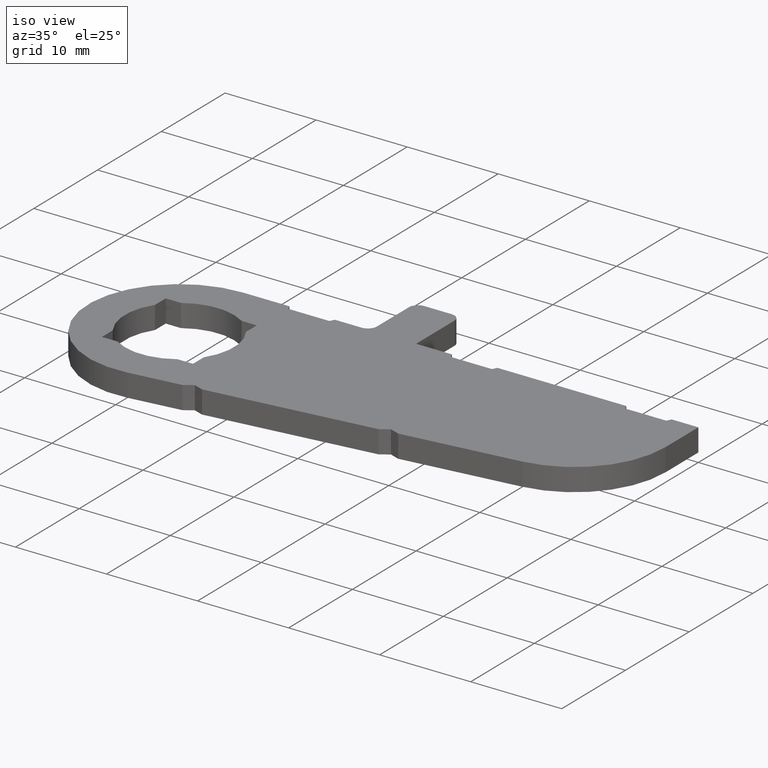
[diagram: clean part render]
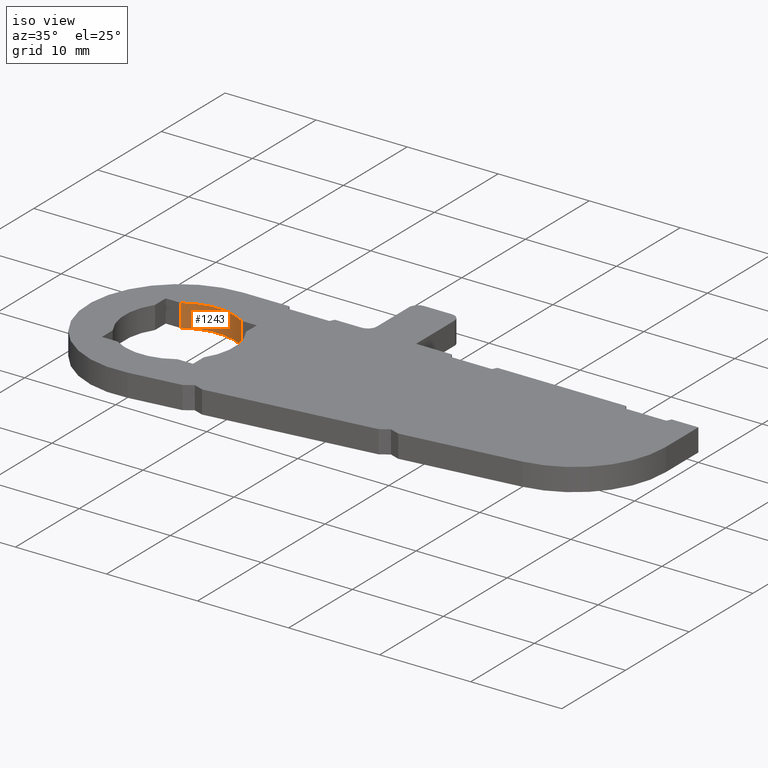
[diagram: same view with one face highlighted and labeled with its STEP entity id]
A machine part, iso view. The second image highlights one B-rep face of the part: STEP entity #1243.
In plain terms, the highlighted cylindrical surface (partial cylindrical patch) has radius 6 mm, axis along (0, 0, -1).
Its self-contained STEP definition (entity closure, byte-faithful):
#981=CARTESIAN_POINT('',(-3.331651592688786,4.989999766025477,-2.500000000000000));
#982=VERTEX_POINT('',#981);
#1064=CARTESIAN_POINT('',(3.331651592688779,4.989999766025477,-2.500000000000000));
#1065=VERTEX_POINT('',#1064);
#1072=CARTESIAN_POINT('',(0.0,0.0,-2.500000000000000));
#1073=DIRECTION('',(0.0,0.0,-1.0));
#1074=DIRECTION('',(1.0,0.0,0.0));
#1075=AXIS2_PLACEMENT_3D('',#1072,#1073,#1074);
#1076=CIRCLE('',#1075,5.999999999999999);
#1077=EDGE_CURVE('',#982,#1065,#1076,.T.);
#1188=CARTESIAN_POINT('',(-3.331651592688772,4.989999766025477,0.0));
#1189=VERTEX_POINT('',#1188);
#1196=CARTESIAN_POINT('',(3.331651592688779,4.989999766025477,0.0));
#1197=VERTEX_POINT('',#1196);
#1198=CARTESIAN_POINT('',(0.0,0.0,0.0));
#1199=DIRECTION('',(0.0,0.0,-1.0));
#1200=DIRECTION('',(1.0,0.0,0.0));
#1201=AXIS2_PLACEMENT_3D('',#1198,#1199,#1200);
#1202=CIRCLE('',#1201,5.999999999999999);
#1203=EDGE_CURVE('',#1189,#1197,#1202,.T.);
#1222=CARTESIAN_POINT('',(0.0,0.0,-2.500000000000000));
#1223=DIRECTION('',(0.0,0.0,-1.0));
#1224=DIRECTION('',(1.0,0.0,0.0));
#1225=AXIS2_PLACEMENT_3D('',#1222,#1223,#1224);
#1226=CYLINDRICAL_SURFACE('',#1225,5.999999999999999);
#1227=ORIENTED_EDGE('',*,*,#1077,.T.);
#1228=CARTESIAN_POINT('',(3.331651592688779,4.989999766025477,-2.500000000000000));
#1229=DIRECTION('',(0.0,0.0,1.0));
#1230=VECTOR('',#1229,2.500000000000000);
#1231=LINE('',#1228,#1230);
#1232=EDGE_CURVE('',#1065,#1197,#1231,.T.);
#1233=ORIENTED_EDGE('',*,*,#1232,.T.);
#1234=ORIENTED_EDGE('',*,*,#1203,.F.);
#1235=CARTESIAN_POINT('',(-3.331651592688786,4.989999766025477,0.0));
#1236=DIRECTION('',(0.0,0.0,-1.0));
#1237=VECTOR('',#1236,2.500000000000000);
#1238=LINE('',#1235,#1237);
#1239=EDGE_CURVE('',#1189,#982,#1238,.T.);
#1240=ORIENTED_EDGE('',*,*,#1239,.T.);
#1241=EDGE_LOOP('',(#1227,#1233,#1234,#1240));
#1242=FACE_OUTER_BOUND('',#1241,.T.);
#1243=ADVANCED_FACE('',(#1242),#1226,.F.);